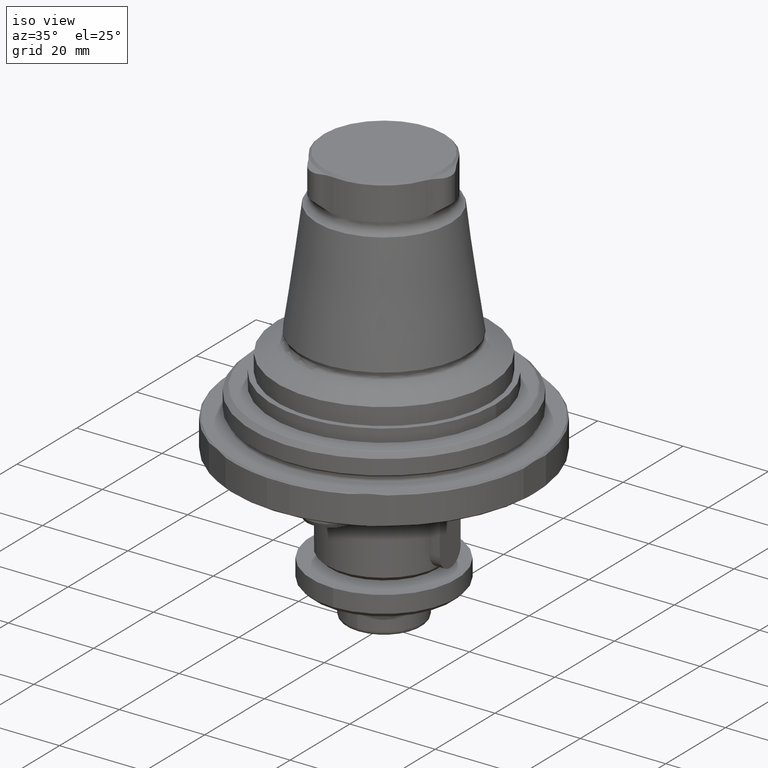
[diagram: clean part render]
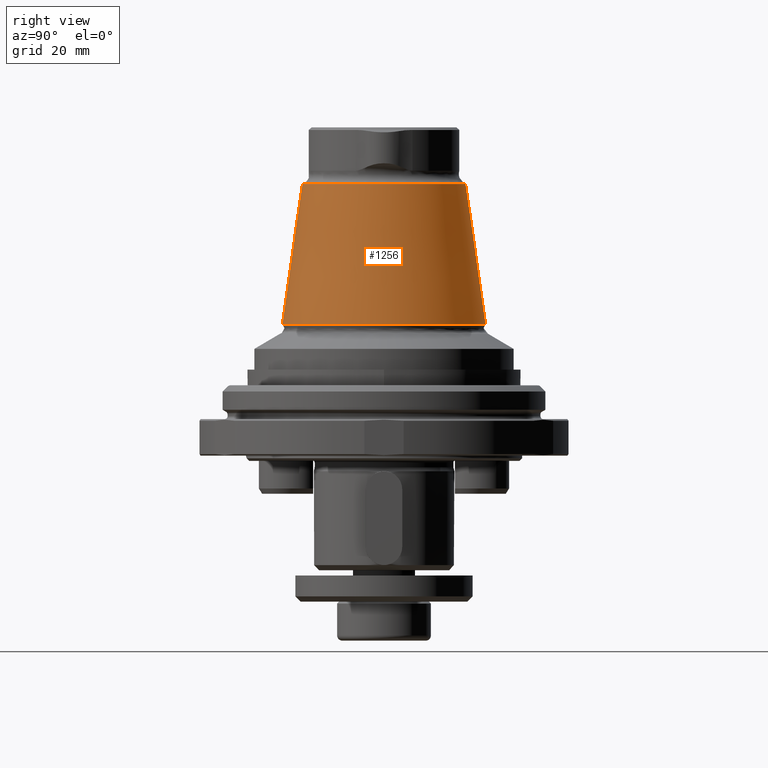
[diagram: tour spotlight — one face highlighted and labeled with its STEP entity id]
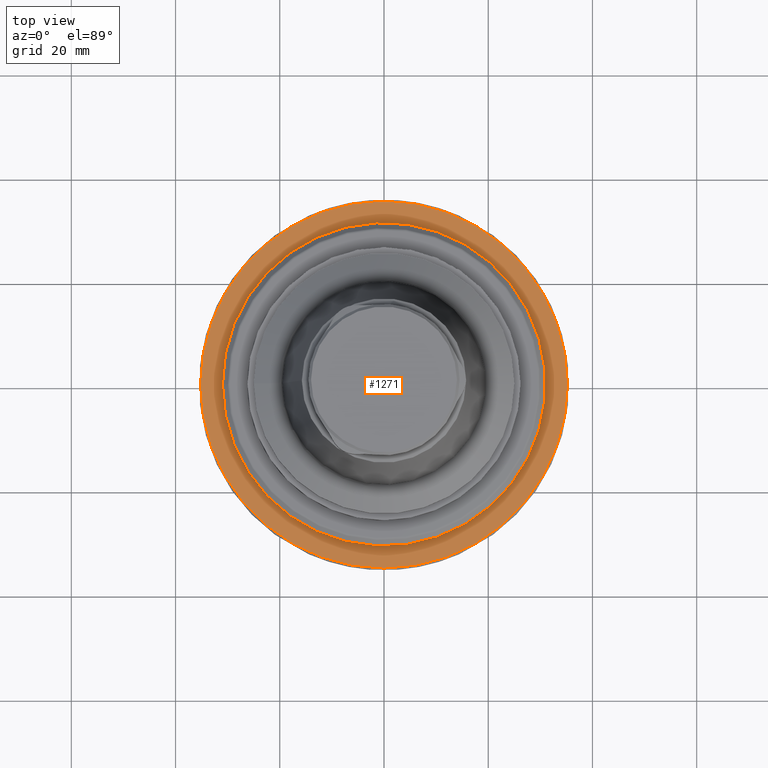
[diagram: tour spotlight — one face highlighted and labeled with its STEP entity id]
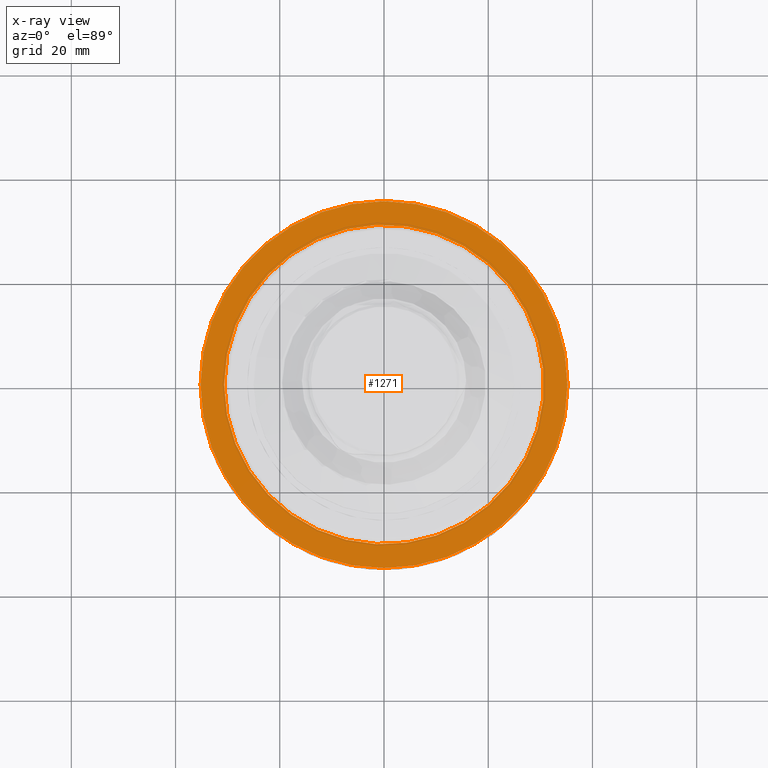
[diagram: x-ray of the same camera — body ghosted, this tour face saturated]
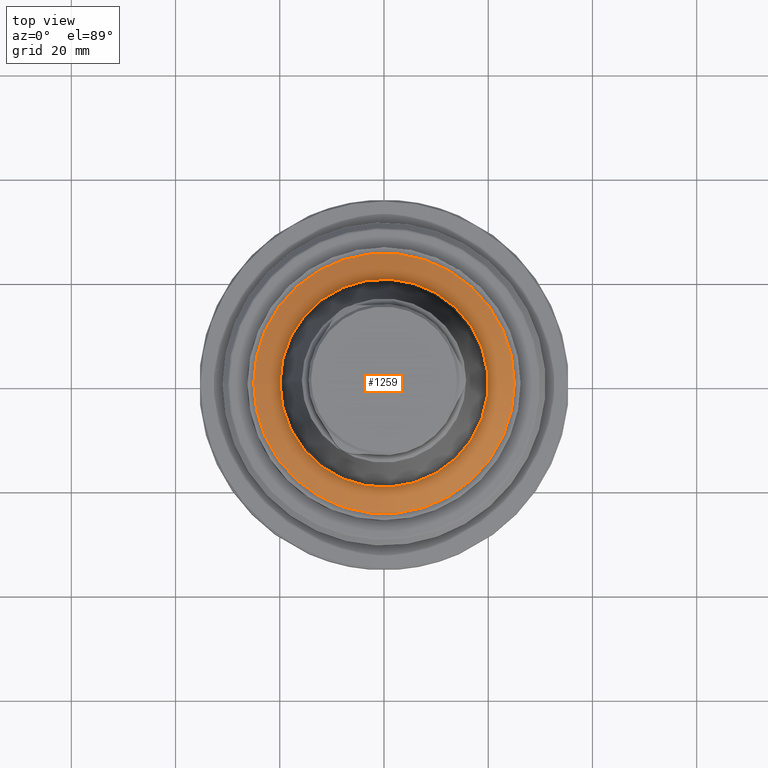
[diagram: tour spotlight — one face highlighted and labeled with its STEP entity id]
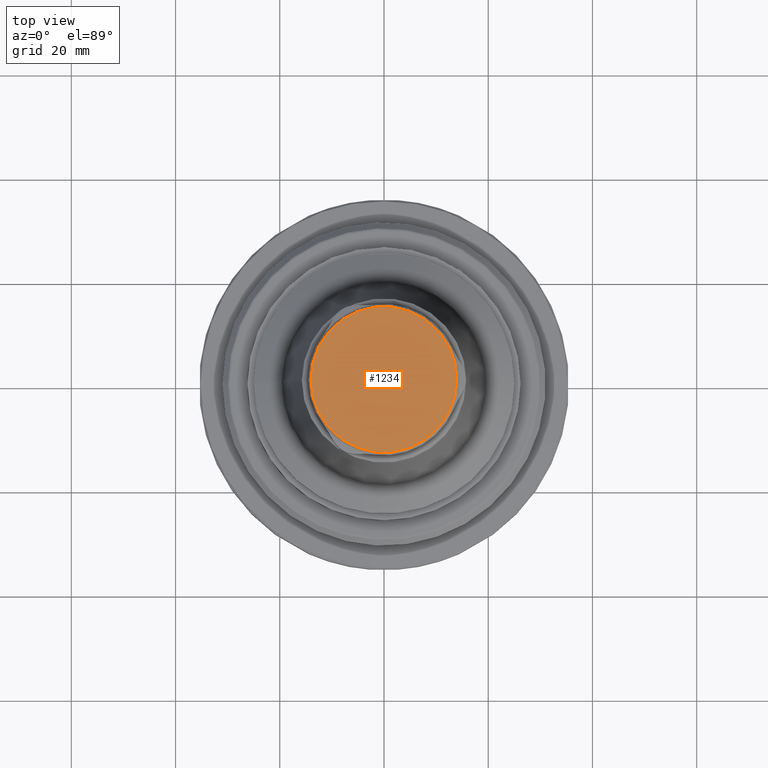
[diagram: tour spotlight — one face highlighted and labeled with its STEP entity id]
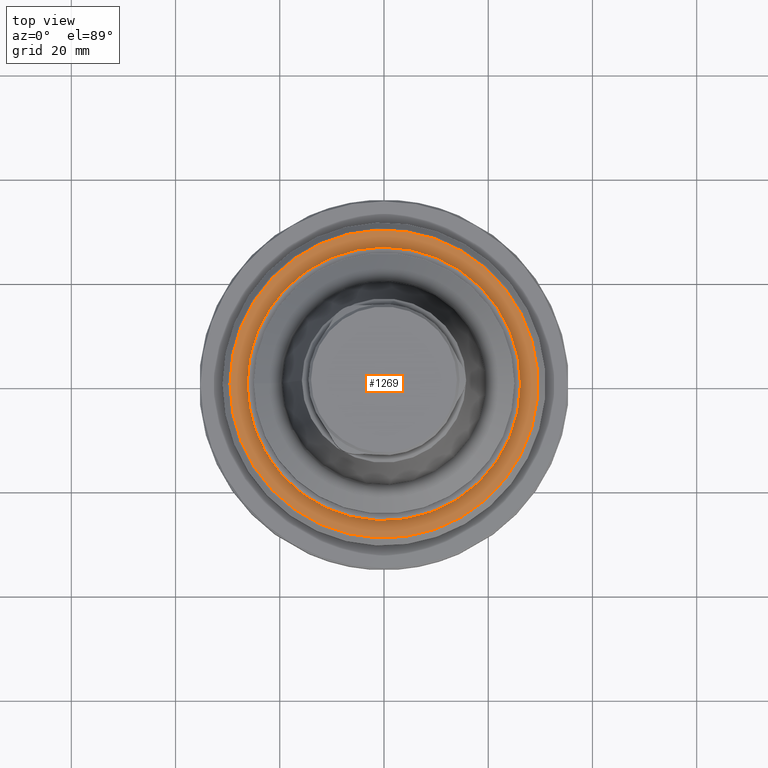
[diagram: tour spotlight — one face highlighted and labeled with its STEP entity id]
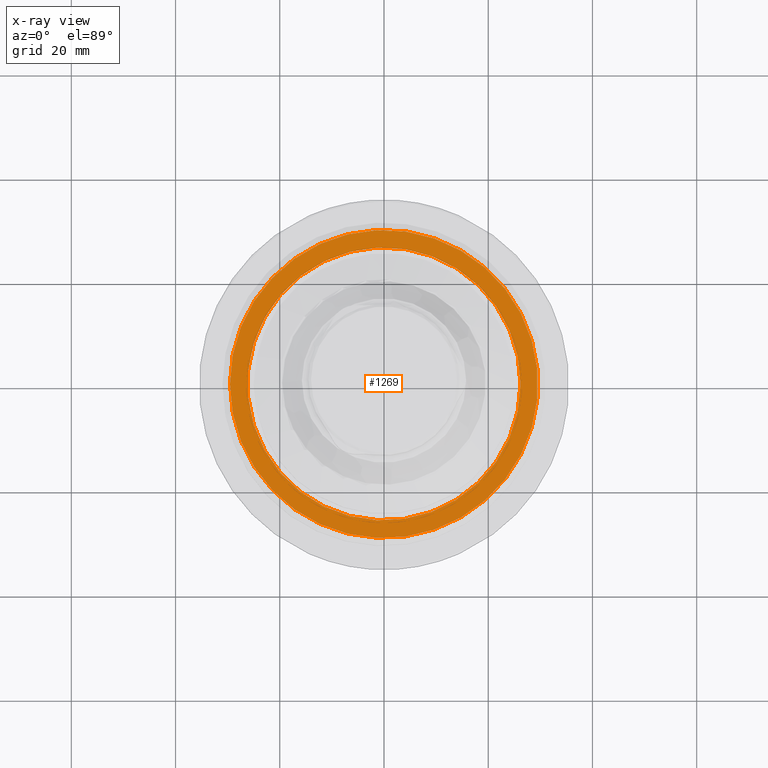
[diagram: x-ray of the same camera — body ghosted, this tour face saturated]
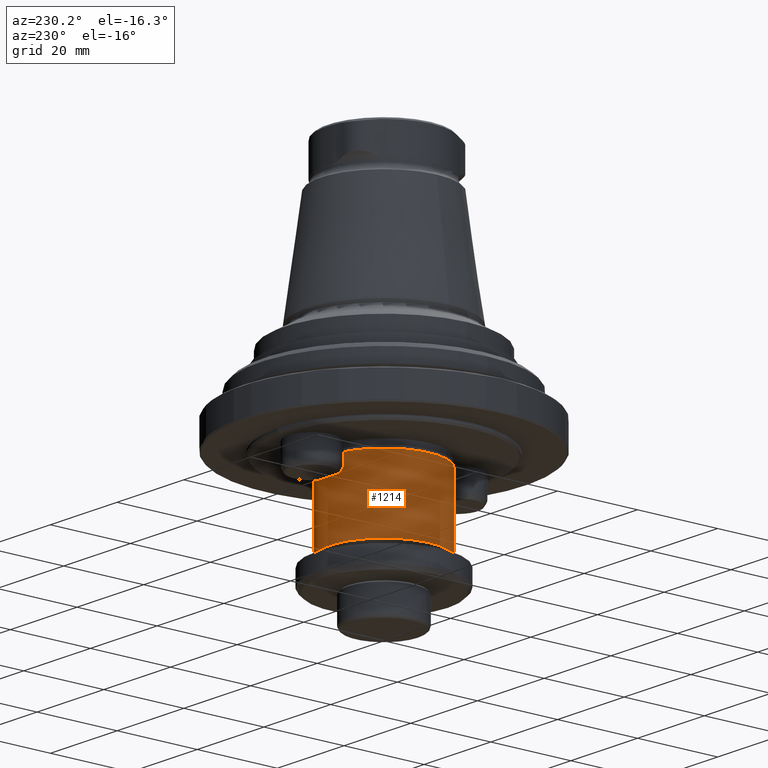
[diagram: tour spotlight — one face highlighted and labeled with its STEP entity id]
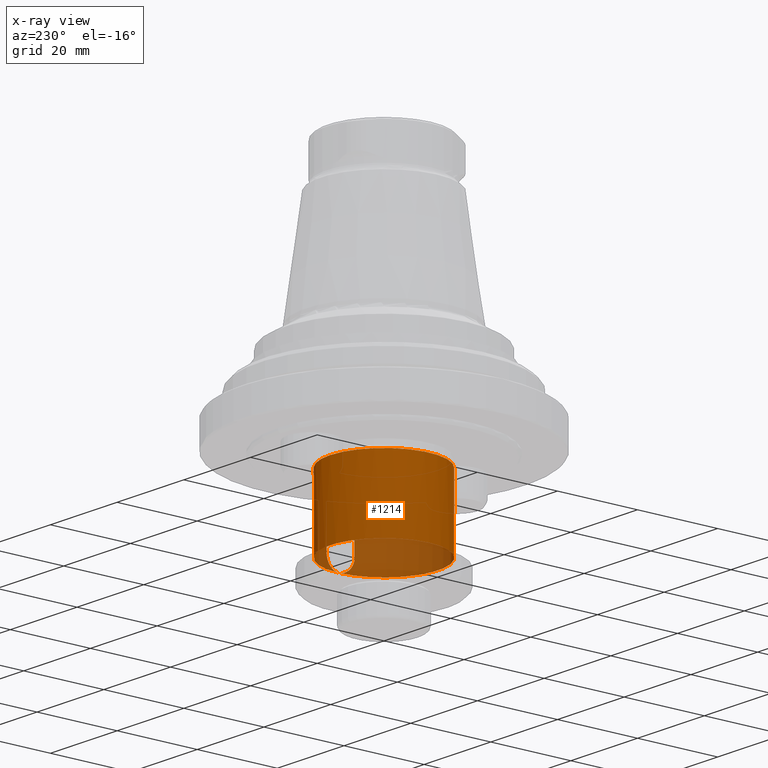
[diagram: x-ray of the same camera — body ghosted, this tour face saturated]
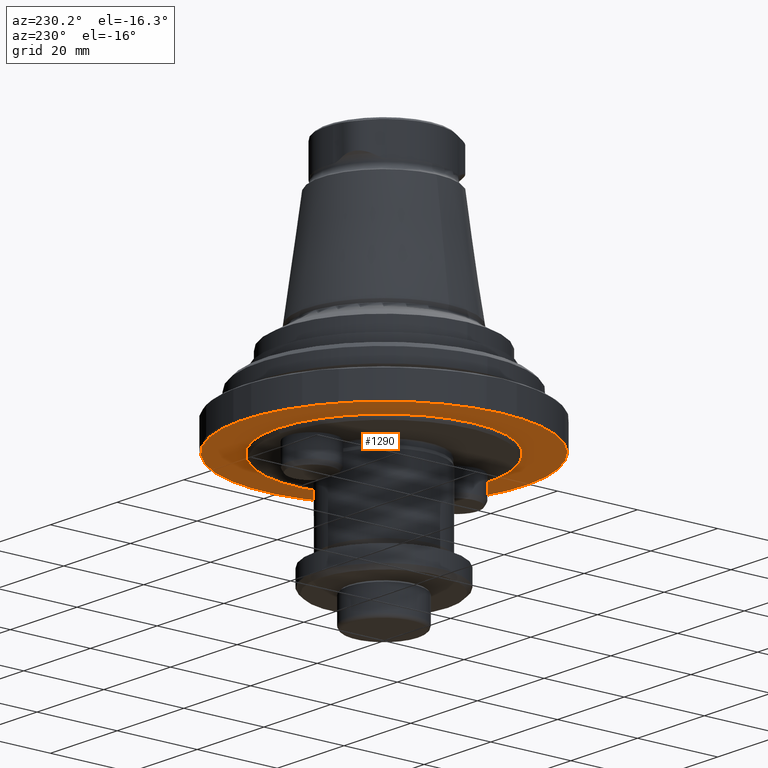
[diagram: tour spotlight — one face highlighted and labeled with its STEP entity id]
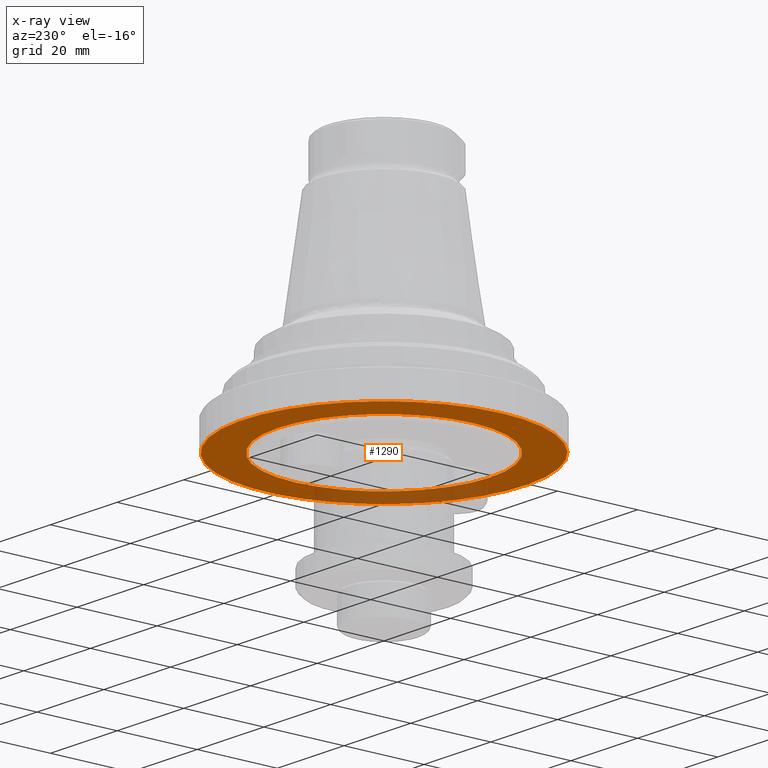
[diagram: x-ray of the same camera — body ghosted, this tour face saturated]
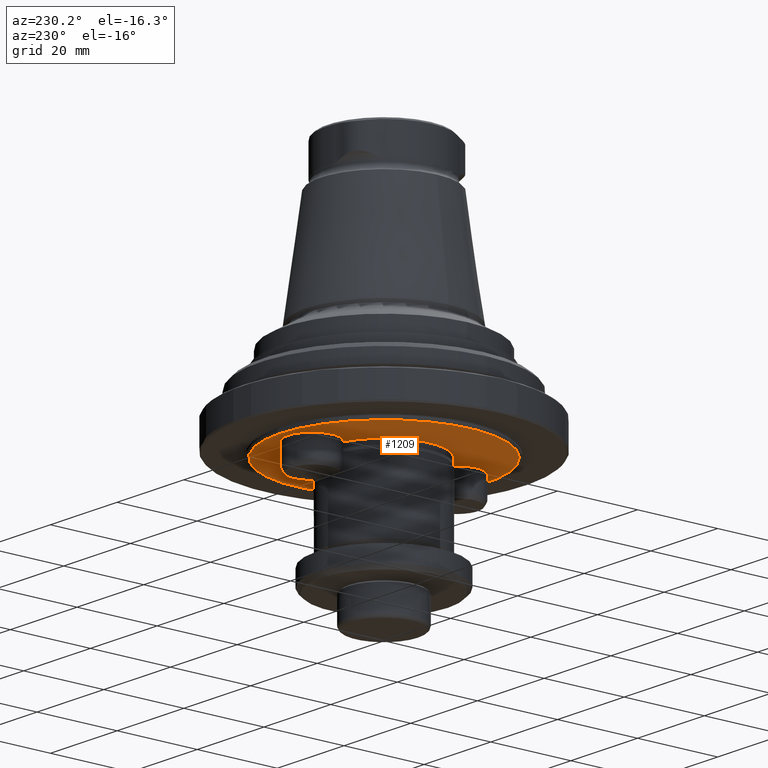
[diagram: tour spotlight — one face highlighted and labeled with its STEP entity id]
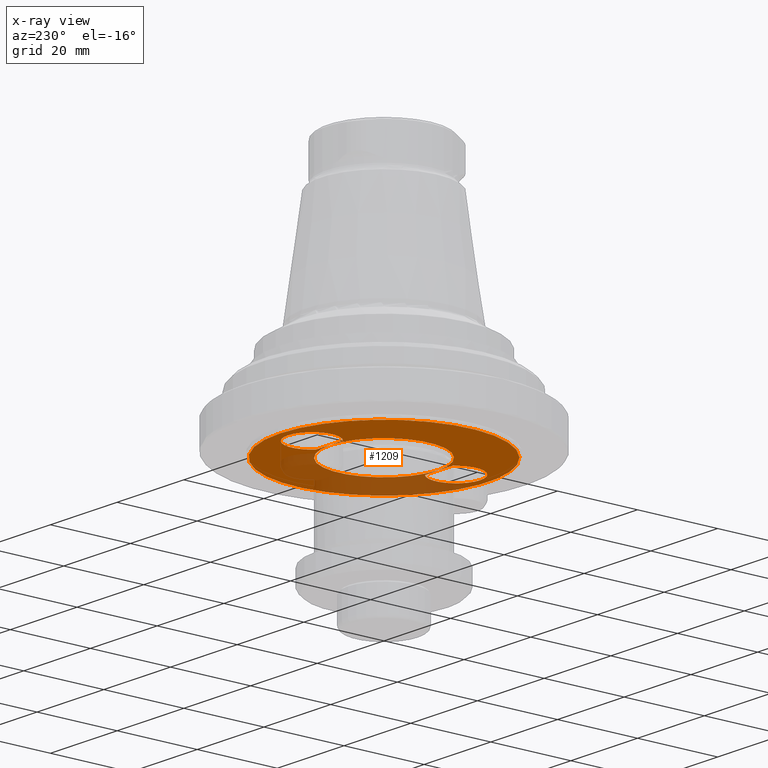
[diagram: x-ray of the same camera — body ghosted, this tour face saturated]
A machine part: a face-by-face anatomy tour. The part has 89 B-rep faces; the first image is the clean iso view, then the 8 largest visible faces are spotlighted one at a time (largest first), each with its STEP entity span.

Face 1 — right view, entity #1256. In plain terms, the highlighted conical surface has half-angle 7.95 deg.
Definition (entity closure, byte-faithful):
#43=CONICAL_SURFACE('',#1400,19.5234803751964,0.138753675533549);
#91=CIRCLE('',#1399,15.7697129677509);
#92=CIRCLE('',#1401,19.5234803751964);
#449=ORIENTED_EDGE('',*,*,#682,.T.);
#450=ORIENTED_EDGE('',*,*,#683,.F.);
#682=EDGE_CURVE('',#819,#819,#91,.T.);
#683=EDGE_CURVE('',#820,#820,#92,.T.);
#819=VERTEX_POINT('',#2185);
#820=VERTEX_POINT('',#2188);
#993=EDGE_LOOP('',(#449));
#994=EDGE_LOOP('',(#450));
#1123=FACE_BOUND('',#993,.T.);
#1124=FACE_BOUND('',#994,.T.);
#1256=ADVANCED_FACE('',(#1123,#1124),#43,.T.);
#1399=AXIS2_PLACEMENT_3D('',#2184,#1688,#1689);
#1400=AXIS2_PLACEMENT_3D('',#2186,#1690,#1691);
#1401=AXIS2_PLACEMENT_3D('',#2187,#1692,#1693);
#1688=DIRECTION('',(1.09102105407346E-16,-6.68035657486175E-33,-1.));
#1689=DIRECTION('',(-1.,6.12303176911189E-17,-1.09102105407346E-16));
#1690=DIRECTION('',(1.09102105407346E-16,-6.68035657486175E-33,-1.));
#1691=DIRECTION('',(-1.,6.12303176911189E-17,-1.09102105407346E-16));
#1692=DIRECTION('',(1.09102105407346E-16,-6.68035657486175E-33,-1.));
#1693=DIRECTION('',(-1.,6.12303176911189E-17,-1.09102105407346E-16));
#2184=CARTESIAN_POINT('',(1.18821895240001E-15,-7.27550239420611E-32,44.109110699893));
#2185=CARTESIAN_POINT('',(-15.7697129677509,9.65584534913143E-16,44.109110699893));
#2186=CARTESIAN_POINT('',(4.12084244364528E-15,-2.52320491979447E-31,17.2294874305165));
#2187=CARTESIAN_POINT('',(4.12084244364528E-15,-2.52320491979447E-31,17.2294874305165));
#2188=CARTESIAN_POINT('',(-19.5234803751964,1.1954289058096E-15,17.2294874305165));

Face 2 — top view, entity #1271. An x-ray twin of the same camera follows (body ghosted, this face saturated) — the face is partly hidden behind the body. In plain terms, the highlighted planar face has unit normal (0, 0, -1).
Definition (entity closure, byte-faithful):
#106=CIRCLE('',#1429,30.65);
#107=CIRCLE('',#1431,35.2);
#479=ORIENTED_EDGE('',*,*,#697,.T.);
#480=ORIENTED_EDGE('',*,*,#698,.F.);
#697=EDGE_CURVE('',#834,#834,#106,.T.);
#698=EDGE_CURVE('',#835,#835,#107,.T.);
#834=VERTEX_POINT('',#2230);
#835=VERTEX_POINT('',#2233);
#1023=EDGE_LOOP('',(#479));
#1024=EDGE_LOOP('',(#480));
#1153=FACE_BOUND('',#1023,.T.);
#1154=FACE_BOUND('',#1024,.T.);
#1192=PLANE('',#1430);
#1271=ADVANCED_FACE('',(#1153,#1154),#1192,.F.);
#1429=AXIS2_PLACEMENT_3D('',#2229,#1748,#1749);
#1430=AXIS2_PLACEMENT_3D('',#2231,#1750,#1751);
#1431=AXIS2_PLACEMENT_3D('',#2232,#1752,#1753);
#1748=DIRECTION('',(0.,1.04225259501902E-17,-1.));
#1749=DIRECTION('',(-1.,0.,0.));
#1750=DIRECTION('',(0.,1.04225259501902E-17,-1.));
#1751=DIRECTION('',(-1.,0.,0.));
#1752=DIRECTION('',(0.,1.04225259501902E-17,-1.));
#1753=DIRECTION('',(-1.,0.,0.));
#2229=CARTESIAN_POINT('',(5.0731267217448E-15,9.90139965268071E-17,-0.998889300106966));
#2230=CARTESIAN_POINT('',(-30.65,9.90139965268071E-17,-0.998889300106966));
#2231=CARTESIAN_POINT('',(-30.65,9.90139965268071E-17,-0.998889300106966));
#2232=CARTESIAN_POINT('',(5.0731267217448E-15,9.90139965268071E-17,-0.998889300106966));
#2233=CARTESIAN_POINT('',(-35.2,9.90139965268071E-17,-0.998889300106966));

Face 3 — top view, entity #1259. In plain terms, the highlighted conical surface has half-angle 60 deg.
Definition (entity closure, byte-faithful):
#45=CONICAL_SURFACE('',#1406,25.,1.0471975511966);
#94=CIRCLE('',#1405,19.9770526580503);
#95=CIRCLE('',#1407,25.);
#455=ORIENTED_EDGE('',*,*,#685,.T.);
#456=ORIENTED_EDGE('',*,*,#686,.F.);
#685=EDGE_CURVE('',#822,#822,#94,.T.);
#686=EDGE_CURVE('',#823,#823,#95,.T.);
#822=VERTEX_POINT('',#2194);
#823=VERTEX_POINT('',#2197);
#999=EDGE_LOOP('',(#455));
#1000=EDGE_LOOP('',(#456));
#1129=FACE_BOUND('',#999,.T.);
#1130=FACE_BOUND('',#1000,.T.);
#1259=ADVANCED_FACE('',(#1129,#1130),#45,.T.);
#1405=AXIS2_PLACEMENT_3D('',#2193,#1700,#1701);
#1406=AXIS2_PLACEMENT_3D('',#2195,#1702,#1703);
#1407=AXIS2_PLACEMENT_3D('',#2196,#1704,#1705);
#1700=DIRECTION('',(1.09102105407346E-16,-6.68035657486175E-33,-1.));
#1701=DIRECTION('',(-1.,6.12303176911189E-17,-1.09102105407346E-16));
#1702=DIRECTION('',(1.09102105407346E-16,-6.68035657486175E-33,-1.));
#1703=DIRECTION('',(-1.,6.12303176911189E-17,-1.09102105407346E-16));
#1704=DIRECTION('',(1.09102105407346E-16,-6.68035657486175E-33,-1.));
#1705=DIRECTION('',(-1.,6.12303176911189E-17,-1.09102105407346E-16));
#2193=CARTESIAN_POINT('',(4.32044337413092E-15,-2.64542120364525E-31,15.4));
#2194=CARTESIAN_POINT('',(-19.9770526580503,1.22320128078463E-15,15.4));
#2195=CARTESIAN_POINT('',(4.63683947981222E-15,-2.83915154431625E-31,12.5));
#2196=CARTESIAN_POINT('',(4.63683947981222E-15,-2.83915154431625E-31,12.5));
#2197=CARTESIAN_POINT('',(-25.,1.53075794227797E-15,12.5));

Face 4 — top view, entity #1234. In plain terms, the highlighted planar face has unit normal (-0, 0, 1).
Definition (entity closure, byte-faithful):
#77=CIRCLE('',#1364,14.);
#348=ORIENTED_EDGE('',*,*,#632,.F.);
#632=EDGE_CURVE('',#787,#787,#77,.T.);
#787=VERTEX_POINT('',#1995);
#968=EDGE_LOOP('',(#348));
#1098=FACE_BOUND('',#968,.T.);
#1189=PLANE('',#1363);
#1234=ADVANCED_FACE('',(#1098),#1189,.T.);
#1363=AXIS2_PLACEMENT_3D('',#1993,#1604,#1605);
#1364=AXIS2_PLACEMENT_3D('',#1994,#1606,#1607);
#1604=DIRECTION('',(-1.09102105407346E-16,6.68035657486175E-33,1.));
#1605=DIRECTION('',(1.,-6.12303176911189E-17,1.09102105407346E-16));
#1606=DIRECTION('',(1.09102105407346E-16,-6.68035657486175E-33,-1.));
#1607=DIRECTION('',(-1.,6.12303176911189E-17,-1.09102105407346E-16));
#1993=CARTESIAN_POINT('',(-14.,8.57224447675664E-16,55.001110699893));
#1994=CARTESIAN_POINT('',(-1.21179696806324E-19,7.41987133316465E-36,55.001110699893));
#1995=CARTESIAN_POINT('',(-14.,8.57224447675664E-16,55.001110699893));

Face 5 — top view, entity #1269. An x-ray twin of the same camera follows (body ghosted, this face saturated) — the face is partly hidden behind the body. In plain terms, the highlighted planar face has unit normal (0, 0, -1).
Definition (entity closure, byte-faithful):
#104=CIRCLE('',#1424,29.5524710292422);
#105=CIRCLE('',#1426,26.2);
#475=ORIENTED_EDGE('',*,*,#696,.F.);
#476=ORIENTED_EDGE('',*,*,#695,.F.);
#695=EDGE_CURVE('',#832,#832,#104,.T.);
#696=EDGE_CURVE('',#833,#833,#105,.T.);
#832=VERTEX_POINT('',#2223);
#833=VERTEX_POINT('',#2226);
#1019=EDGE_LOOP('',(#475));
#1020=EDGE_LOOP('',(#476));
#1149=FACE_BOUND('',#1019,.T.);
#1150=FACE_BOUND('',#1020,.T.);
#1191=PLANE('',#1427);
#1269=ADVANCED_FACE('',(#1149,#1150),#1191,.F.);
#1424=AXIS2_PLACEMENT_3D('',#2222,#1738,#1739);
#1426=AXIS2_PLACEMENT_3D('',#2225,#1742,#1743);
#1427=AXIS2_PLACEMENT_3D('',#2227,#1744,#1745);
#1738=DIRECTION('',(0.,1.04225259501902E-17,-1.));
#1739=DIRECTION('',(-1.,0.,0.));
#1742=DIRECTION('',(7.81689446264269E-18,5.86246862035713E-17,1.));
#1743=DIRECTION('',(1.,-6.12303176911189E-17,-7.81689446264269E-18));
#1744=DIRECTION('',(0.,1.04225259501902E-17,-1.));
#1745=DIRECTION('',(-1.,0.,0.));
#2222=CARTESIAN_POINT('',(5.0731267217448E-15,3.12675778505704E-17,5.50111069989304));
#2223=CARTESIAN_POINT('',(-29.5524710292422,3.12675778505704E-17,5.50111069989304));
#2225=CARTESIAN_POINT('',(1.04582185758008E-14,7.81689446264113E-18,5.50111069989303));
#2226=CARTESIAN_POINT('',(26.2,-1.59641742904467E-15,5.50111069989303));
#2227=CARTESIAN_POINT('',(5.0731267217448E-15,3.12675778505704E-17,5.50111069989304));

Face 6 — auxiliary view, entity #1214. An x-ray twin of the same camera follows (body ghosted, this face saturated) — the face is partly hidden behind the body. In plain terms, the highlighted cylindrical surface (bore or boss wall) has radius 13.5 mm, axis along (0, 0, -1).
Definition (entity closure, byte-faithful):
#61=CIRCLE('',#1326,13.5);
#62=CIRCLE('',#1328,13.5);
#128=CYLINDRICAL_SURFACE('',#1330,13.5);
#164=LINE('',#1907,#208);
#165=LINE('',#1920,#209);
#208=VECTOR('',#1529,1000.);
#209=VECTOR('',#1530,1000.);
#283=ORIENTED_EDGE('',*,*,#602,.T.);
#284=ORIENTED_EDGE('',*,*,#603,.T.);
#285=ORIENTED_EDGE('',*,*,#604,.T.);
#286=ORIENTED_EDGE('',*,*,#600,.F.);
#287=ORIENTED_EDGE('',*,*,#605,.T.);
#288=ORIENTED_EDGE('',*,*,#606,.T.);
#289=ORIENTED_EDGE('',*,*,#607,.T.);
#290=ORIENTED_EDGE('',*,*,#599,.T.);
#599=EDGE_CURVE('',#763,#763,#61,.T.);
#600=EDGE_CURVE('',#764,#764,#62,.T.);
#602=EDGE_CURVE('',#763,#766,#871,.T.);
#603=EDGE_CURVE('',#766,#767,#164,.T.);
#604=EDGE_CURVE('',#767,#764,#872,.T.);
#605=EDGE_CURVE('',#764,#768,#873,.T.);
#606=EDGE_CURVE('',#768,#769,#165,.F.);
#607=EDGE_CURVE('',#769,#763,#874,.T.);
#763=VERTEX_POINT('',#1894);
#764=VERTEX_POINT('',#1897);
#766=VERTEX_POINT('',#1906);
#767=VERTEX_POINT('',#1908);
#768=VERTEX_POINT('',#1919);
#769=VERTEX_POINT('',#1921);
#871=B_SPLINE_CURVE_WITH_KNOTS('',3,(#1901,#1902,#1903,#1904,#1905),
 .UNSPECIFIED.,.F.,.F.,(4,1,4),(0.0054962508245808,0.00824121037402459,
0.0109861699234684),.UNSPECIFIED.);
#872=B_SPLINE_CURVE_WITH_KNOTS('',3,(#1909,#1910,#1911,#1912,#1913),
 .UNSPECIFIED.,.F.,.F.,(4,1,4),(0.,0.0027481254122904,0.0054962508245808),
 .UNSPECIFIED.);
#873=B_SPLINE_CURVE_WITH_KNOTS('',3,(#1914,#1915,#1916,#1917,#1918),
 .UNSPECIFIED.,.F.,.F.,(4,1,4),(0.0054962508245808,0.00824121037402459,
0.0109861699234684),.UNSPECIFIED.);
#874=B_SPLINE_CURVE_WITH_KNOTS('',3,(#1922,#1923,#1924,#1925,#1926),
 .UNSPECIFIED.,.F.,.F.,(4,1,4),(0.,0.0027481254122904,0.0054962508245808),
 .UNSPECIFIED.);
#939=EDGE_LOOP('',(#283,#284,#285,#286,#287,#288,#289,#290));
#1069=FACE_BOUND('',#939,.T.);
#1214=ADVANCED_FACE('',(#1069),#128,.T.);
#1326=AXIS2_PLACEMENT_3D('',#1893,#1519,#1520);
#1328=AXIS2_PLACEMENT_3D('',#1896,#1523,#1524);
#1330=AXIS2_PLACEMENT_3D('',#1900,#1527,#1528);
#1519=DIRECTION('',(0.,0.,-1.));
#1520=DIRECTION('',(0.,1.,0.));
#1523=DIRECTION('',(0.,0.,-1.));
#1524=DIRECTION('',(0.,1.,0.));
#1527=DIRECTION('',(0.,0.,-1.));
#1528=DIRECTION('',(0.,1.,0.));
#1529=DIRECTION('',(0.,0.,-1.));
#1530=DIRECTION('',(0.,0.,-1.));
#1893=CARTESIAN_POINT('',(0.,0.,-11.));
#1894=CARTESIAN_POINT('',(13.5,-7.1823441183247E-16,-11.));
#1896=CARTESIAN_POINT('',(0.,0.,-29.));
#1897=CARTESIAN_POINT('',(13.5,0.,-29.));
#1900=CARTESIAN_POINT('',(0.,0.,-46.));
#1901=CARTESIAN_POINT('',(13.5,-1.04337978820494E-15,-11.));
#1902=CARTESIAN_POINT('',(13.5,0.916837547301278,-11.));
#1903=CARTESIAN_POINT('',(13.2731715638645,2.74156951786944,-11.7647514245225));
#1904=CARTESIAN_POINT('',(13.0384048104053,3.5,-13.5714838842068));
#1905=CARTESIAN_POINT('',(13.0384048104053,3.5,-14.5));
#1906=CARTESIAN_POINT('',(13.0384048104053,3.5,-14.5));
#1907=CARTESIAN_POINT('',(13.0384048104053,3.5,-46.));
#1908=CARTESIAN_POINT('',(13.0384048104053,3.5,-25.5));
#1909=CARTESIAN_POINT('',(13.0384048104053,3.5,-25.5));
#1910=CARTESIAN_POINT('',(13.0384048104053,3.5,-26.4295576206072));
#1911=CARTESIAN_POINT('',(13.2736096743823,2.73869103341824,-28.237076709818));
#1912=CARTESIAN_POINT('',(13.5,0.917894969778764,-29.));
#1913=CARTESIAN_POINT('',(13.5,-1.01781145452517E-15,-29.));
#1914=CARTESIAN_POINT('',(13.5,-2.58869933785318E-16,-29.));
#1915=CARTESIAN_POINT('',(13.5,-0.916837547301279,-29.));
#1916=CARTESIAN_POINT('',(13.2731715638645,-2.74156951786944,-28.2352485754775));
#1917=CARTESIAN_POINT('',(13.0384048104053,-3.5,-26.4285161157932));
#1918=CARTESIAN_POINT('',(13.0384048104053,-3.5,-25.5));
#1919=CARTESIAN_POINT('',(13.0384048104053,-3.5,-25.5));
#1920=CARTESIAN_POINT('',(13.0384048104053,-3.5,-46.));
#1921=CARTESIAN_POINT('',(13.0384048104053,-3.5,-14.5));
#1922=CARTESIAN_POINT('',(13.0384048104053,-3.5,-14.5));
#1923=CARTESIAN_POINT('',(13.0384048104053,-3.5,-13.5704423793928));
#1924=CARTESIAN_POINT('',(13.2736096743823,-2.73869103341824,-11.762923290182));
#1925=CARTESIAN_POINT('',(13.5,-0.917894969778765,-11.));
#1926=CARTESIAN_POINT('',(13.5,-1.04337978820494E-15,-11.));

Face 7 — auxiliary view, entity #1290. An x-ray twin of the same camera follows (body ghosted, this face saturated) — the face is partly hidden behind the body. In plain terms, the highlighted planar face has unit normal (0, -0, 1).
Definition (entity closure, byte-faithful):
#59=CIRCLE('',#1322,26.4999999999997);
#124=CIRCLE('',#1466,35.2);
#579=ORIENTED_EDGE('',*,*,#597,.F.);
#580=ORIENTED_EDGE('',*,*,#747,.T.);
#597=EDGE_CURVE('',#761,#761,#59,.F.);
#747=EDGE_CURVE('',#868,#868,#124,.T.);
#761=VERTEX_POINT('',#1888);
#868=VERTEX_POINT('',#2381);
#1045=EDGE_LOOP('',(#579));
#1046=EDGE_LOOP('',(#580));
#1175=FACE_BOUND('',#1045,.T.);
#1176=FACE_BOUND('',#1046,.T.);
#1201=PLANE('',#1467);
#1290=ADVANCED_FACE('',(#1175,#1176),#1201,.F.);
#1322=AXIS2_PLACEMENT_3D('',#1887,#1511,#1512);
#1466=AXIS2_PLACEMENT_3D('',#2380,#1838,#1839);
#1467=AXIS2_PLACEMENT_3D('',#2382,#1840,#1841);
#1511=DIRECTION('',(0.,-1.04225259501902E-17,1.));
#1512=DIRECTION('',(0.,-1.,-1.04225259501902E-17));
#1838=DIRECTION('',(0.,1.04225259501902E-17,-1.));
#1839=DIRECTION('',(-1.,0.,0.));
#1840=DIRECTION('',(0.,-1.04225259501902E-17,1.));
#1841=DIRECTION('',(1.,0.,0.));
#1887=CARTESIAN_POINT('',(0.,0.,-7.99888930010696));
#1888=CARTESIAN_POINT('',(0.,-26.4999999999997,-7.99888930010696));
#2380=CARTESIAN_POINT('',(5.0731267217448E-15,1.71971678178139E-16,-7.99888930010697));
#2381=CARTESIAN_POINT('',(-35.2,1.71971678178139E-16,-7.99888930010697));
#2382=CARTESIAN_POINT('',(-35.2,1.71971678178139E-16,-7.99888930010697));

Face 8 — auxiliary view, entity #1209. An x-ray twin of the same camera follows (body ghosted, this face saturated) — the face is partly hidden behind the body. In plain terms, the highlighted planar face has unit normal (0, 0, -1).
Definition (entity closure, byte-faithful):
#51=CIRCLE('',#1307,6.);
#56=CIRCLE('',#1316,25.9999999999998);
#57=CIRCLE('',#1318,13.4418572032223);
#58=CIRCLE('',#1320,6.);
#161=LINE('',#1859,#205);
#163=LINE('',#1882,#207);
#205=VECTOR('',#1474,1000.);
#207=VECTOR('',#1506,1000.);
#269=ORIENTED_EDGE('',*,*,#594,.F.);
#270=ORIENTED_EDGE('',*,*,#593,.T.);
#271=ORIENTED_EDGE('',*,*,#585,.F.);
#272=ORIENTED_EDGE('',*,*,#588,.F.);
#273=ORIENTED_EDGE('',*,*,#595,.F.);
#274=ORIENTED_EDGE('',*,*,#596,.F.);
#585=EDGE_CURVE('',#752,#753,#161,.T.);
#588=EDGE_CURVE('',#753,#752,#51,.T.);
#593=EDGE_CURVE('',#757,#757,#56,.T.);
#594=EDGE_CURVE('',#758,#758,#57,.F.);
#595=EDGE_CURVE('',#759,#760,#163,.T.);
#596=EDGE_CURVE('',#760,#759,#58,.T.);
#752=VERTEX_POINT('',#1858);
#753=VERTEX_POINT('',#1860);
#757=VERTEX_POINT('',#1877);
#758=VERTEX_POINT('',#1880);
#759=VERTEX_POINT('',#1883);
#760=VERTEX_POINT('',#1884);
#927=EDGE_LOOP('',(#269));
#928=EDGE_LOOP('',(#270));
#929=EDGE_LOOP('',(#271,#272));
#930=EDGE_LOOP('',(#273,#274));
#1057=FACE_BOUND('',#927,.T.);
#1058=FACE_BOUND('',#928,.T.);
#1059=FACE_BOUND('',#929,.T.);
#1060=FACE_BOUND('',#930,.T.);
#1179=PLANE('',#1319);
#1209=ADVANCED_FACE('',(#1057,#1058,#1059,#1060),#1179,.T.);
#1307=AXIS2_PLACEMENT_3D('',#1864,#1480,#1481);
#1316=AXIS2_PLACEMENT_3D('',#1876,#1498,#1499);
#1318=AXIS2_PLACEMENT_3D('',#1879,#1502,#1503);
#1319=AXIS2_PLACEMENT_3D('',#1881,#1504,#1505);
#1320=AXIS2_PLACEMENT_3D('',#1885,#1507,#1508);
#1474=DIRECTION('',(1.,9.86076131526265E-32,0.));
#1480=DIRECTION('',(0.,0.,-1.));
#1481=DIRECTION('',(9.86076131526265E-32,-1.,0.));
#1498=DIRECTION('',(0.,0.,-1.));
#1499=DIRECTION('',(0.,1.,0.));
#1502=DIRECTION('',(0.,0.,1.));
#1503=DIRECTION('',(0.,-1.,0.));
#1504=DIRECTION('',(0.,0.,-1.));
#1505=DIRECTION('',(0.,1.,0.));
#1506=DIRECTION('',(-1.,1.22464679914735E-16,0.));
#1507=DIRECTION('',(0.,0.,-1.));
#1508=DIRECTION('',(1.22464679914735E-16,1.,0.));
#1858=CARTESIAN_POINT('',(-4.07921561087426,-13.6,-9.));
#1859=CARTESIAN_POINT('',(-4.33873497871555E-31,-13.6,-9.));
#1860=CARTESIAN_POINT('',(4.07921561087424,-13.6,-9.));
#1864=CARTESIAN_POINT('',(0.,-18.,-9.));
#1876=CARTESIAN_POINT('',(0.,0.,-9.00000000000001));
#1877=CARTESIAN_POINT('',(0.,25.9999999999998,-9.00000000000001));
#1879=CARTESIAN_POINT('',(0.,0.,-9.00000000000001));
#1880=CARTESIAN_POINT('',(0.,-13.4418572032223,-9.00000000000001));
#1881=CARTESIAN_POINT('',(0.,14.4,-9.00000000000001));
#1882=CARTESIAN_POINT('',(-5.38844591624834E-16,13.6,-9.00000000000001));
#1883=CARTESIAN_POINT('',(4.07921561087426,13.6,-9.00000000000001));
#1884=CARTESIAN_POINT('',(-4.07921561087424,13.6,-9.00000000000001));
#1885=CARTESIAN_POINT('',(0.,18.,-9.00000000000001));